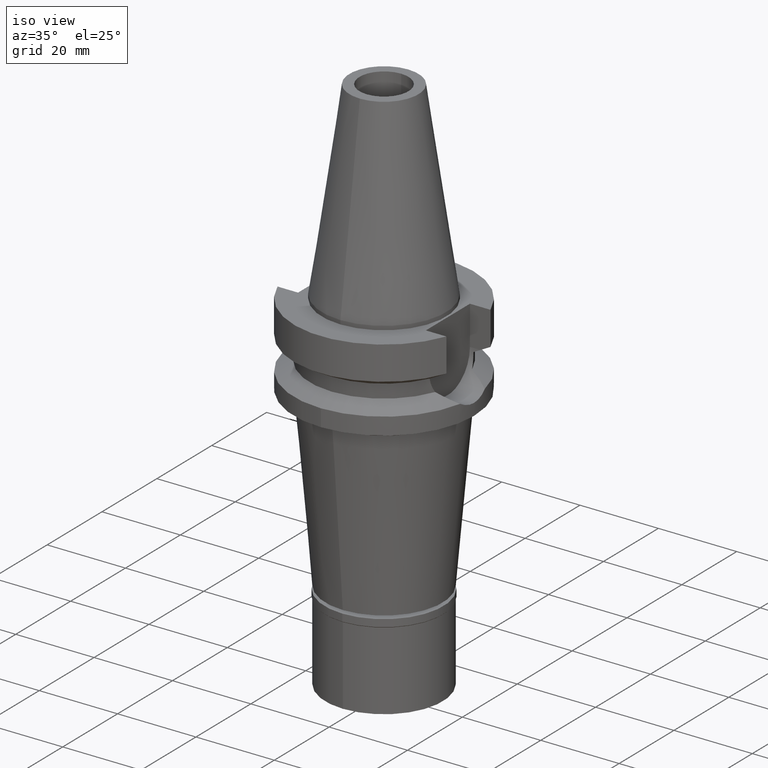
[diagram: clean part render]
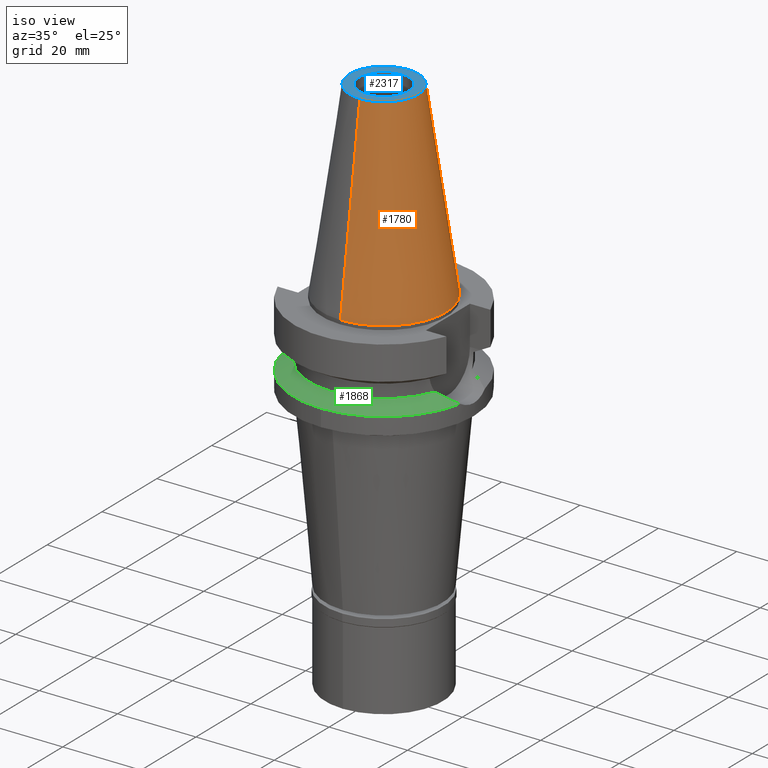
[diagram: same view with three faces highlighted in distinct colors, each labeled with its STEP entity id]
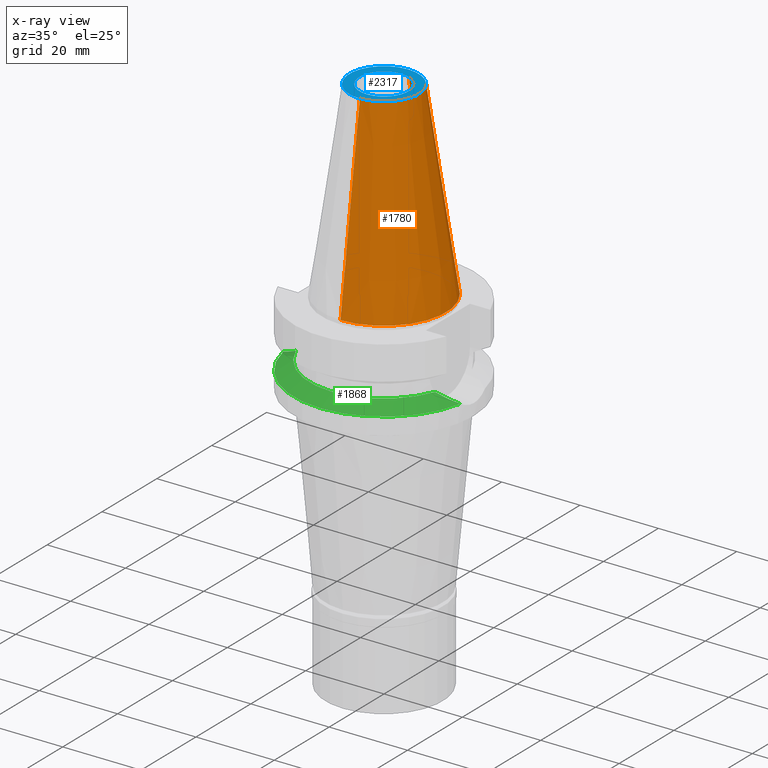
[diagram: x-ray of the same camera — body ghosted, the three highlighted faces saturated]
A machine part, iso view with three faces highlighted in distinct colors.
The next image is the same camera in x-ray (body ghosted, the three faces saturated) — at least one of them is partly hidden behind the body in this view.
Their STEP definitions:

[orange] entity #1780 — the highlighted conical surface has half-angle 8.297 deg.
#5 = CARTESIAN_POINT ( 'NONE',  ( 0.0000000000000000000, -8.816791732783000768, 48.39999999999999858 ) ) ;
#52 = DIRECTION ( 'NONE',  ( 0.0000000000000000000, -1.000000000000000000, 0.0000000000000000000 ) ) ;
#68 = DIRECTION ( 'NONE',  ( 0.0000000000000000000, 0.0000000000000000000, -1.000000000000000000 ) ) ;
#144 = CONICAL_SURFACE ( 'NONE', #1128, 12.34589586639000025, 0.1448099680379422438 ) ;
#149 = CIRCLE ( 'NONE', #1873, 15.87500000000000000 ) ;
#201 = VECTOR ( 'NONE', #945, 1000.000000000000114 ) ;
#244 = DIRECTION ( 'NONE',  ( 0.0000000000000000000, 0.0000000000000000000, -1.000000000000000000 ) ) ;
#290 = EDGE_CURVE ( 'NONE', #2674, #2308, #729, .T. ) ;
#353 = EDGE_CURVE ( 'NONE', #2674, #1677, #1435, .T. ) ;
#432 = VERTEX_POINT ( 'NONE', #924 ) ;
#435 = ORIENTED_EDGE ( 'NONE', *, *, #353, .F. ) ;
#462 = ORIENTED_EDGE ( 'NONE', *, *, #1616, .F. ) ;
#675 = AXIS2_PLACEMENT_3D ( 'NONE', #3056, #244, #1142 ) ;
#726 = CARTESIAN_POINT ( 'NONE',  ( 0.0000000000000000000, 15.87500000000000000, -1.136868377215999875E-13 ) ) ;
#729 = CIRCLE ( 'NONE', #675, 8.816791732783000768 ) ;
#924 = CARTESIAN_POINT ( 'NONE',  ( 0.0000000000000000000, -15.87500000000000000, -3.410605131648000255E-13 ) ) ;
#945 = DIRECTION ( 'NONE',  ( 0.0000000000000000000, -0.1443043893539925626, -0.9895333461855498891 ) ) ;
#1028 = FACE_OUTER_BOUND ( 'NONE', #1381, .T. ) ;
#1128 = AXIS2_PLACEMENT_3D ( 'NONE', #2885, #2439, #52 ) ;
#1142 = DIRECTION ( 'NONE',  ( 0.0000000000000000000, 1.000000000000000000, 0.0000000000000000000 ) ) ;
#1237 = CARTESIAN_POINT ( 'NONE',  ( 0.0000000000000000000, 0.0000000000000000000, -3.410605131648000255E-13 ) ) ;
#1381 = EDGE_LOOP ( 'NONE', ( #2941, #1660, #462, #435 ) ) ;
#1435 = LINE ( 'NONE', #2087, #2217 ) ;
#1569 = EDGE_CURVE ( 'NONE', #2308, #432, #2594, .T. ) ;
#1616 = EDGE_CURVE ( 'NONE', #1677, #432, #149, .T. ) ;
#1660 = ORIENTED_EDGE ( 'NONE', *, *, #1569, .T. ) ;
#1677 = VERTEX_POINT ( 'NONE', #726 ) ;
#1714 = DIRECTION ( 'NONE',  ( 0.0000000000000000000, 1.000000000000000000, 0.0000000000000000000 ) ) ;
#1780 = ADVANCED_FACE ( 'NONE', ( #1028 ), #144, .T. ) ;
#1873 = AXIS2_PLACEMENT_3D ( 'NONE', #1237, #68, #1714 ) ;
#2087 = CARTESIAN_POINT ( 'NONE',  ( 0.0000000000000000000, 8.816791732783000768, 48.39999999999999858 ) ) ;
#2143 = CARTESIAN_POINT ( 'NONE',  ( 0.0000000000000000000, 8.816791732783000768, 48.39999999999999858 ) ) ;
#2217 = VECTOR ( 'NONE', #3032, 1000.000000000000114 ) ;
#2308 = VERTEX_POINT ( 'NONE', #2415 ) ;
#2415 = CARTESIAN_POINT ( 'NONE',  ( 0.0000000000000000000, -8.816791732783000768, 48.39999999999999858 ) ) ;
#2439 = DIRECTION ( 'NONE',  ( 0.0000000000000000000, 0.0000000000000000000, -1.000000000000000000 ) ) ;
#2594 = LINE ( 'NONE', #5, #201 ) ;
#2674 = VERTEX_POINT ( 'NONE', #2143 ) ;
#2885 = CARTESIAN_POINT ( 'NONE',  ( 0.0000000000000000000, 0.0000000000000000000, 24.19999999999999929 ) ) ;
#2941 = ORIENTED_EDGE ( 'NONE', *, *, #290, .T. ) ;
#3032 = DIRECTION ( 'NONE',  ( 0.0000000000000000000, 0.1443043893539925626, -0.9895333461855498891 ) ) ;
#3056 = CARTESIAN_POINT ( 'NONE',  ( 0.0000000000000000000, 0.0000000000000000000, 48.39999999999999858 ) ) ;

[blue] entity #2317 — the highlighted planar face has unit normal (0, 0, -1).
#66 = PLANE ( 'NONE',  #2722 ) ;
#85 = AXIS2_PLACEMENT_3D ( 'NONE', #540, #2931, #2958 ) ;
#174 = DIRECTION ( 'NONE',  ( 0.0000000000000000000, 0.0000000000000000000, -1.000000000000000000 ) ) ;
#244 = DIRECTION ( 'NONE',  ( 0.0000000000000000000, 0.0000000000000000000, -1.000000000000000000 ) ) ;
#290 = EDGE_CURVE ( 'NONE', #2674, #2308, #729, .T. ) ;
#291 = FACE_OUTER_BOUND ( 'NONE', #1406, .T. ) ;
#298 = DIRECTION ( 'NONE',  ( 0.0000000000000000000, -1.000000000000000000, 0.0000000000000000000 ) ) ;
#325 = ORIENTED_EDGE ( 'NONE', *, *, #2525, .F. ) ;
#408 = CARTESIAN_POINT ( 'NONE',  ( 0.0000000000000000000, 0.0000000000000000000, 48.39999999999999858 ) ) ;
#487 = VERTEX_POINT ( 'NONE', #1496 ) ;
#540 = CARTESIAN_POINT ( 'NONE',  ( 0.0000000000000000000, 0.0000000000000000000, 48.39999999999999858 ) ) ;
#556 = DIRECTION ( 'NONE',  ( 0.0000000000000000000, -1.000000000000000000, 0.0000000000000000000 ) ) ;
#675 = AXIS2_PLACEMENT_3D ( 'NONE', #3056, #244, #1142 ) ;
#698 = CIRCLE ( 'NONE', #2386, 8.816791732783000768 ) ;
#729 = CIRCLE ( 'NONE', #675, 8.816791732783000768 ) ;
#921 = DIRECTION ( 'NONE',  ( 0.0000000000000000000, -1.000000000000000000, 0.0000000000000000000 ) ) ;
#1141 = AXIS2_PLACEMENT_3D ( 'NONE', #2214, #1703, #298 ) ;
#1142 = DIRECTION ( 'NONE',  ( 0.0000000000000000000, 1.000000000000000000, 0.0000000000000000000 ) ) ;
#1233 = CIRCLE ( 'NONE', #1141, 6.250000000000000000 ) ;
#1235 = FACE_BOUND ( 'NONE', #2031, .T. ) ;
#1330 = ORIENTED_EDGE ( 'NONE', *, *, #1812, .F. ) ;
#1406 = EDGE_LOOP ( 'NONE', ( #1453, #325 ) ) ;
#1453 = ORIENTED_EDGE ( 'NONE', *, *, #290, .F. ) ;
#1496 = CARTESIAN_POINT ( 'NONE',  ( 0.0000000000000000000, 6.250000000000000000, 48.39999999999999858 ) ) ;
#1629 = CARTESIAN_POINT ( 'NONE',  ( 0.0000000000000000000, -6.250000000000000000, 48.39999999999999858 ) ) ;
#1665 = CIRCLE ( 'NONE', #85, 6.250000000000000000 ) ;
#1703 = DIRECTION ( 'NONE',  ( 0.0000000000000000000, 0.0000000000000000000, 1.000000000000000000 ) ) ;
#1812 = EDGE_CURVE ( 'NONE', #2928, #487, #1233, .T. ) ;
#2031 = EDGE_LOOP ( 'NONE', ( #2059, #1330 ) ) ;
#2059 = ORIENTED_EDGE ( 'NONE', *, *, #2770, .F. ) ;
#2143 = CARTESIAN_POINT ( 'NONE',  ( 0.0000000000000000000, 8.816791732783000768, 48.39999999999999858 ) ) ;
#2214 = CARTESIAN_POINT ( 'NONE',  ( 0.0000000000000000000, 0.0000000000000000000, 48.39999999999999858 ) ) ;
#2308 = VERTEX_POINT ( 'NONE', #2415 ) ;
#2317 = ADVANCED_FACE ( 'NONE', ( #291, #1235 ), #66, .F. ) ;
#2386 = AXIS2_PLACEMENT_3D ( 'NONE', #408, #174, #921 ) ;
#2415 = CARTESIAN_POINT ( 'NONE',  ( 0.0000000000000000000, -8.816791732783000768, 48.39999999999999858 ) ) ;
#2435 = CARTESIAN_POINT ( 'NONE',  ( 0.0000000000000000000, 0.0000000000000000000, 48.39999999999999858 ) ) ;
#2462 = DIRECTION ( 'NONE',  ( 0.0000000000000000000, 0.0000000000000000000, -1.000000000000000000 ) ) ;
#2525 = EDGE_CURVE ( 'NONE', #2308, #2674, #698, .T. ) ;
#2674 = VERTEX_POINT ( 'NONE', #2143 ) ;
#2722 = AXIS2_PLACEMENT_3D ( 'NONE', #2435, #2462, #556 ) ;
#2770 = EDGE_CURVE ( 'NONE', #487, #2928, #1665, .T. ) ;
#2928 = VERTEX_POINT ( 'NONE', #1629 ) ;
#2931 = DIRECTION ( 'NONE',  ( 0.0000000000000000000, 0.0000000000000000000, 1.000000000000000000 ) ) ;
#2958 = DIRECTION ( 'NONE',  ( 0.0000000000000000000, 1.000000000000000000, 0.0000000000000000000 ) ) ;
#3056 = CARTESIAN_POINT ( 'NONE',  ( 0.0000000000000000000, 0.0000000000000000000, 48.39999999999999858 ) ) ;

[green] entity #1868 — the highlighted conical surface has half-angle 60 deg.
#74 = CARTESIAN_POINT ( 'NONE',  ( -21.37344794601403208, -5.343258989388234959, -17.05846002346695300 ) ) ;
#114 = VERTEX_POINT ( 'NONE', #1102 ) ;
#153 = CARTESIAN_POINT ( 'NONE',  ( 17.75736593456000278, -6.758398853743999624, -15.32339055352999857 ) ) ;
#190 = CARTESIAN_POINT ( 'NONE',  ( 0.0000000000000000000, 0.0000000000000000000, -17.63279163029000074 ) ) ;
#313 = DIRECTION ( 'NONE',  ( 0.0000000000000000000, 0.0000000000000000000, -1.000000000000000000 ) ) ;
#336 = FACE_OUTER_BOUND ( 'NONE', #787, .T. ) ;
#395 = AXIS2_PLACEMENT_3D ( 'NONE', #190, #1055, #2102 ) ;
#431 = DIRECTION ( 'NONE',  ( 0.0000000000000000000, -1.000000000000000000, 0.0000000000000000000 ) ) ;
#464 = CARTESIAN_POINT ( 'NONE',  ( -22.55786346208000026, -4.488072640470000430, -17.63279163029000074 ) ) ;
#480 = VERTEX_POINT ( 'NONE', #939 ) ;
#489 = AXIS2_PLACEMENT_3D ( 'NONE', #1134, #2084, #1148 ) ;
#581 = CONICAL_SURFACE ( 'NONE', #2327, 21.00000000000000000, 1.047197551196400456 ) ;
#642 = ORIENTED_EDGE ( 'NONE', *, *, #2844, .F. ) ;
#787 = EDGE_LOOP ( 'NONE', ( #2970, #3027, #1912, #1907, #642 ) ) ;
#844 = CARTESIAN_POINT ( 'NONE',  ( 0.0000000000000000000, -23.00000000000000000, -17.63279163029000074 ) ) ;
#896 = CARTESIAN_POINT ( 'NONE',  ( 19.77328210347569382, -6.137069160758337638, -16.28355951934193868 ) ) ;
#939 = CARTESIAN_POINT ( 'NONE',  ( 17.75736593456000278, -6.758398853743999624, -15.32339055352999857 ) ) ;
#1021 = EDGE_CURVE ( 'NONE', #2036, #1503, #1813, .T. ) ;
#1055 = DIRECTION ( 'NONE',  ( 0.0000000000000000000, 0.0000000000000000000, -1.000000000000000000 ) ) ;
#1102 = CARTESIAN_POINT ( 'NONE',  ( -17.75736593456000278, -6.758398853743999624, -15.32339055352999857 ) ) ;
#1134 = CARTESIAN_POINT ( 'NONE',  ( 0.0000000000000000000, 0.0000000000000000000, -17.63279163029000074 ) ) ;
#1148 = DIRECTION ( 'NONE',  ( 0.0000000000000000000, -1.000000000000000000, 0.0000000000000000000 ) ) ;
#1231 = EDGE_CURVE ( 'NONE', #114, #480, #1280, .T. ) ;
#1257 = CARTESIAN_POINT ( 'NONE',  ( -19.77328210350736271, -6.137069160740561635, -16.28355951936940471 ) ) ;
#1280 = CIRCLE ( 'NONE', #3012, 19.00000000000000000 ) ;
#1282 = CARTESIAN_POINT ( 'NONE',  ( 0.0000000000000000000, 0.0000000000000000000, -16.47809109191000232 ) ) ;
#1503 = VERTEX_POINT ( 'NONE', #464 ) ;
#1728 = CIRCLE ( 'NONE', #395, 23.00000000000001066 ) ;
#1813 = CIRCLE ( 'NONE', #489, 23.00000000000000000 ) ;
#1868 = ADVANCED_FACE ( 'NONE', ( #336 ), #581, .T. ) ;
#1907 = ORIENTED_EDGE ( 'NONE', *, *, #1231, .F. ) ;
#1912 = ORIENTED_EDGE ( 'NONE', *, *, #1974, .F. ) ;
#1968 = CARTESIAN_POINT ( 'NONE',  ( -17.75736593456000278, -6.758398853743999624, -15.32339055352999857 ) ) ;
#1974 = EDGE_CURVE ( 'NONE', #480, #2206, #2343, .T. ) ;
#2009 = CARTESIAN_POINT ( 'NONE',  ( 22.55786346208000026, -4.488072640470000430, -17.63279163029000074 ) ) ;
#2036 = VERTEX_POINT ( 'NONE', #844 ) ;
#2084 = DIRECTION ( 'NONE',  ( 0.0000000000000000000, 0.0000000000000000000, -1.000000000000000000 ) ) ;
#2094 = DIRECTION ( 'NONE',  ( 0.0000000000000000000, 0.0000000000000000000, 1.000000000000000000 ) ) ;
#2102 = DIRECTION ( 'NONE',  ( 0.9807766722643714852, -0.1951335930638943839, 0.0000000000000000000 ) ) ;
#2196 = CARTESIAN_POINT ( 'NONE',  ( -22.55786346208000026, -4.488072640470000430, -17.63279163029000074 ) ) ;
#2206 = VERTEX_POINT ( 'NONE', #2624 ) ;
#2235 = DIRECTION ( 'NONE',  ( 0.0000000000000000000, -1.000000000000000000, 0.0000000000000000000 ) ) ;
#2277 = CARTESIAN_POINT ( 'NONE',  ( 0.0000000000000000000, 0.0000000000000000000, -15.32339055352999857 ) ) ;
#2327 = AXIS2_PLACEMENT_3D ( 'NONE', #1282, #313, #2235 ) ;
#2343 = B_SPLINE_CURVE_WITH_KNOTS ( 'NONE', 3,
 ( #153, #896, #2771, #2009 ),
 .UNSPECIFIED., .F., .F.,
 ( 4, 4 ),
 ( 0.0000000000000000000, 1.000000000000000000 ),
 .UNSPECIFIED. ) ;
#2383 = EDGE_CURVE ( 'NONE', #2206, #2036, #1728, .T. ) ;
#2624 = CARTESIAN_POINT ( 'NONE',  ( 22.55786346208000026, -4.488072640470000430, -17.63279163029000074 ) ) ;
#2771 = CARTESIAN_POINT ( 'NONE',  ( 21.37344794598235964, -5.343258989415392790, -17.05846002344871337 ) ) ;
#2844 = EDGE_CURVE ( 'NONE', #1503, #114, #2968, .T. ) ;
#2968 = B_SPLINE_CURVE_WITH_KNOTS ( 'NONE', 3,
 ( #2196, #74, #1257, #1968 ),
 .UNSPECIFIED., .F., .F.,
 ( 4, 4 ),
 ( 0.0000000000000000000, 1.000000000000000000 ),
 .UNSPECIFIED. ) ;
#2970 = ORIENTED_EDGE ( 'NONE', *, *, #1021, .F. ) ;
#3012 = AXIS2_PLACEMENT_3D ( 'NONE', #2277, #2094, #431 ) ;
#3027 = ORIENTED_EDGE ( 'NONE', *, *, #2383, .F. ) ;